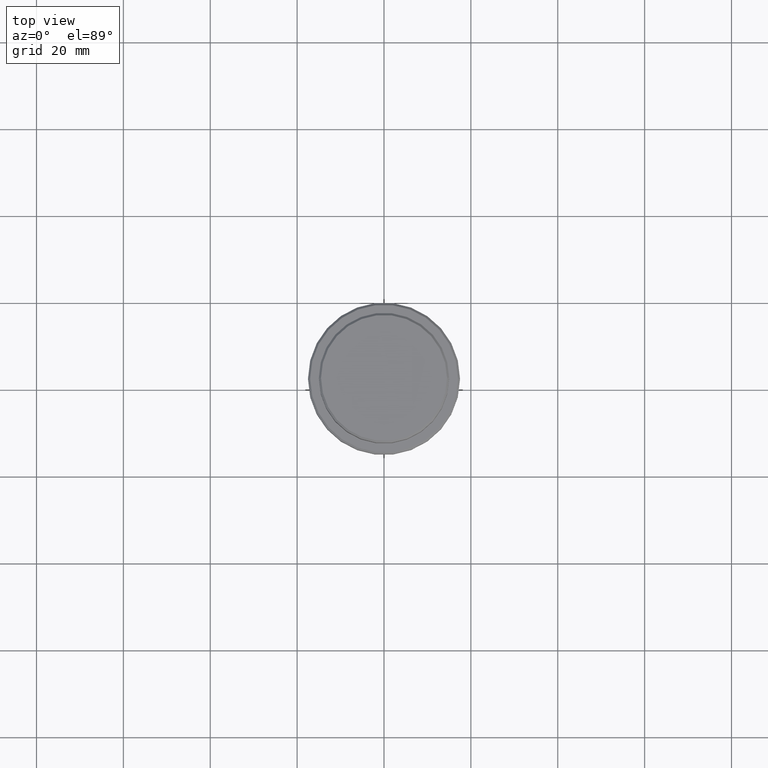
[diagram: clean part render]
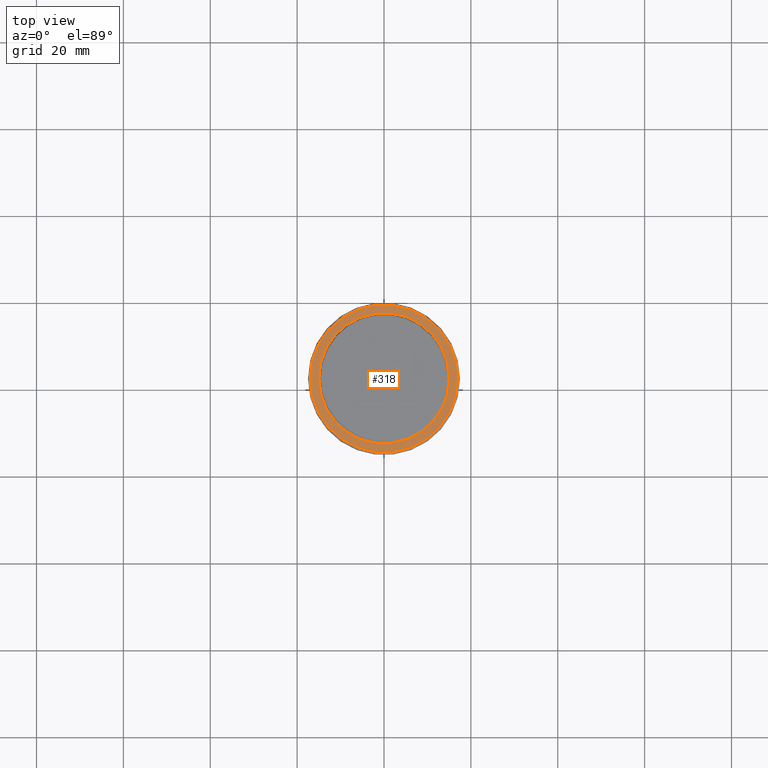
[diagram: same view with one face highlighted and labeled with its STEP entity id]
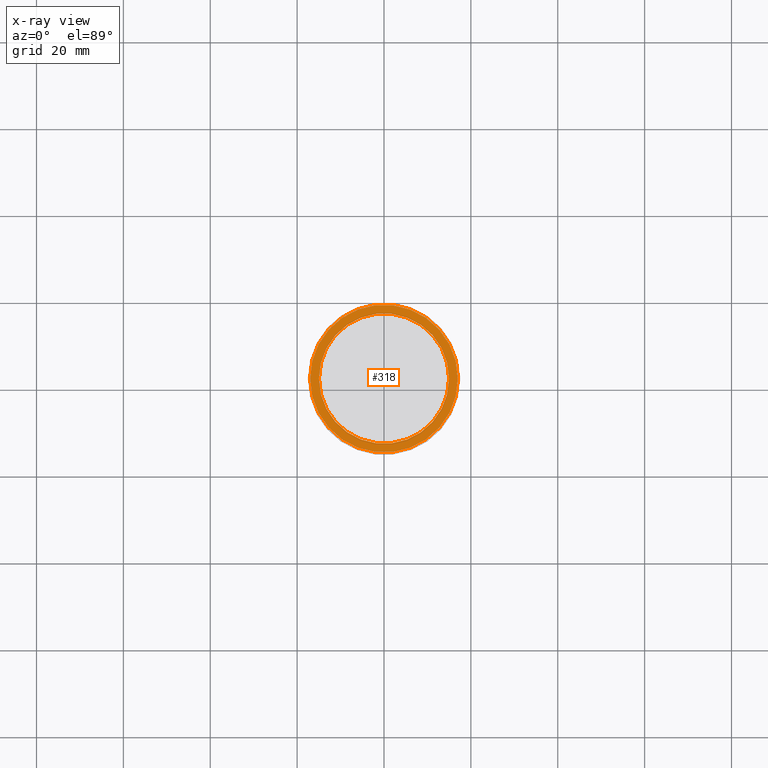
[diagram: x-ray of the same camera — body ghosted, the highlighted face saturated]
A machine part, top view. The second image highlights one B-rep face of the part: STEP entity #318.
The next image is the same camera in x-ray: the body ghosted, the highlighted face saturated — about 0% of this face is hidden behind the body in this view.
In plain terms, the highlighted planar face has unit normal (0, -0, 1).
Its self-contained STEP definition (entity closure, byte-faithful):
#41 = DIRECTION ( 'NONE',  ( 0.000000000000000000, 0.000000000000000000, -1.000000000000000000 ) ) ;
#62 = CIRCLE ( 'NONE', #755, 14.99999999999999289 ) ;
#75 = ORIENTED_EDGE ( 'NONE', *, *, #119, .T. ) ;
#76 = CARTESIAN_POINT ( 'NONE',  ( 0.000000000000000000, 0.000000000000000000, -9.000000000000000000 ) ) ;
#77 = CARTESIAN_POINT ( 'NONE',  ( -16.99999999999998579, 0.000000000000000000, -9.000000000000000000 ) ) ;
#89 = DIRECTION ( 'NONE',  ( 1.000000000000000000, 0.000000000000000000, 0.000000000000000000 ) ) ;
#101 = AXIS2_PLACEMENT_3D ( 'NONE', #1149, #1388, #633 ) ;
#119 = EDGE_CURVE ( 'NONE', #937, #228, #934, .T. ) ;
#149 = ORIENTED_EDGE ( 'NONE', *, *, #412, .T. ) ;
#159 = CARTESIAN_POINT ( 'NONE',  ( 0.000000000000000000, 0.000000000000000000, -9.000000000000000000 ) ) ;
#162 = FACE_BOUND ( 'NONE', #844, .T. ) ;
#228 = VERTEX_POINT ( 'NONE', #1342 ) ;
#231 = ORIENTED_EDGE ( 'NONE', *, *, #1106, .T. ) ;
#318 = ADVANCED_FACE ( 'NONE', ( #837, #162 ), #738, .T. ) ;
#373 = EDGE_LOOP ( 'NONE', ( #882, #149 ) ) ;
#374 = CARTESIAN_POINT ( 'NONE',  ( 16.99999999999998579, 2.112515728529183278E-15, -9.000000000000000000 ) ) ;
#407 = VERTEX_POINT ( 'NONE', #77 ) ;
#412 = EDGE_CURVE ( 'NONE', #707, #407, #1132, .T. ) ;
#414 = DIRECTION ( 'NONE',  ( 1.000000000000000000, 0.000000000000000000, 0.000000000000000000 ) ) ;
#483 = DIRECTION ( 'NONE',  ( 1.000000000000000000, 0.000000000000000000, 0.000000000000000000 ) ) ;
#517 = CARTESIAN_POINT ( 'NONE',  ( 0.000000000000000000, 0.000000000000000000, -9.000000000000000000 ) ) ;
#593 = CARTESIAN_POINT ( 'NONE',  ( 0.000000000000000000, 0.000000000000000000, -9.000000000000000000 ) ) ;
#633 = DIRECTION ( 'NONE',  ( 1.000000000000000000, 0.000000000000000000, 0.000000000000000000 ) ) ;
#646 = CARTESIAN_POINT ( 'NONE',  ( 14.99999999999999289, 0.000000000000000000, -9.000000000000000000 ) ) ;
#707 = VERTEX_POINT ( 'NONE', #374 ) ;
#738 = PLANE ( 'NONE',  #101 ) ;
#742 = DIRECTION ( 'NONE',  ( -0.000000000000000000, -0.000000000000000000, 1.000000000000000000 ) ) ;
#749 = AXIS2_PLACEMENT_3D ( 'NONE', #593, #41, #483 ) ;
#755 = AXIS2_PLACEMENT_3D ( 'NONE', #159, #1031, #1048 ) ;
#815 = EDGE_CURVE ( 'NONE', #407, #707, #1041, .T. ) ;
#837 = FACE_OUTER_BOUND ( 'NONE', #373, .T. ) ;
#844 = EDGE_LOOP ( 'NONE', ( #75, #231 ) ) ;
#882 = ORIENTED_EDGE ( 'NONE', *, *, #815, .T. ) ;
#934 = CIRCLE ( 'NONE', #749, 14.99999999999999289 ) ;
#937 = VERTEX_POINT ( 'NONE', #646 ) ;
#977 = AXIS2_PLACEMENT_3D ( 'NONE', #76, #742, #89 ) ;
#995 = AXIS2_PLACEMENT_3D ( 'NONE', #517, #1389, #414 ) ;
#1031 = DIRECTION ( 'NONE',  ( 0.000000000000000000, 0.000000000000000000, -1.000000000000000000 ) ) ;
#1041 = CIRCLE ( 'NONE', #977, 16.99999999999998579 ) ;
#1048 = DIRECTION ( 'NONE',  ( 1.000000000000000000, 0.000000000000000000, 0.000000000000000000 ) ) ;
#1106 = EDGE_CURVE ( 'NONE', #228, #937, #62, .T. ) ;
#1132 = CIRCLE ( 'NONE', #995, 16.99999999999998579 ) ;
#1149 = CARTESIAN_POINT ( 'NONE',  ( 0.000000000000000000, 14.49999999999999467, -9.000000000000000000 ) ) ;
#1342 = CARTESIAN_POINT ( 'NONE',  ( -14.99999999999999289, 1.836970198721028800E-15, -9.000000000000000000 ) ) ;
#1388 = DIRECTION ( 'NONE',  ( 0.000000000000000000, -0.000000000000000000, 1.000000000000000000 ) ) ;
#1389 = DIRECTION ( 'NONE',  ( -0.000000000000000000, -0.000000000000000000, 1.000000000000000000 ) ) ;